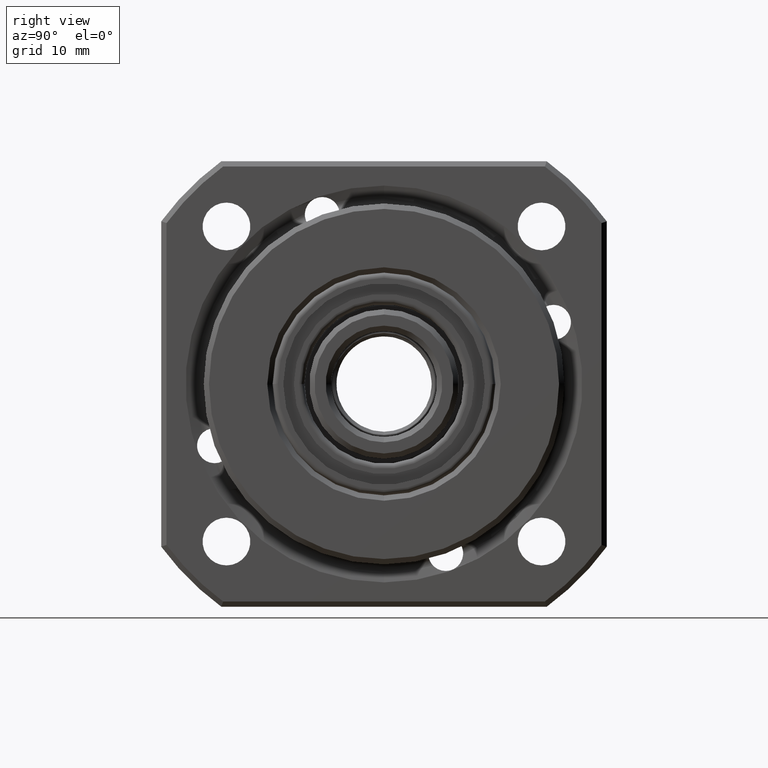
[diagram: clean part render]
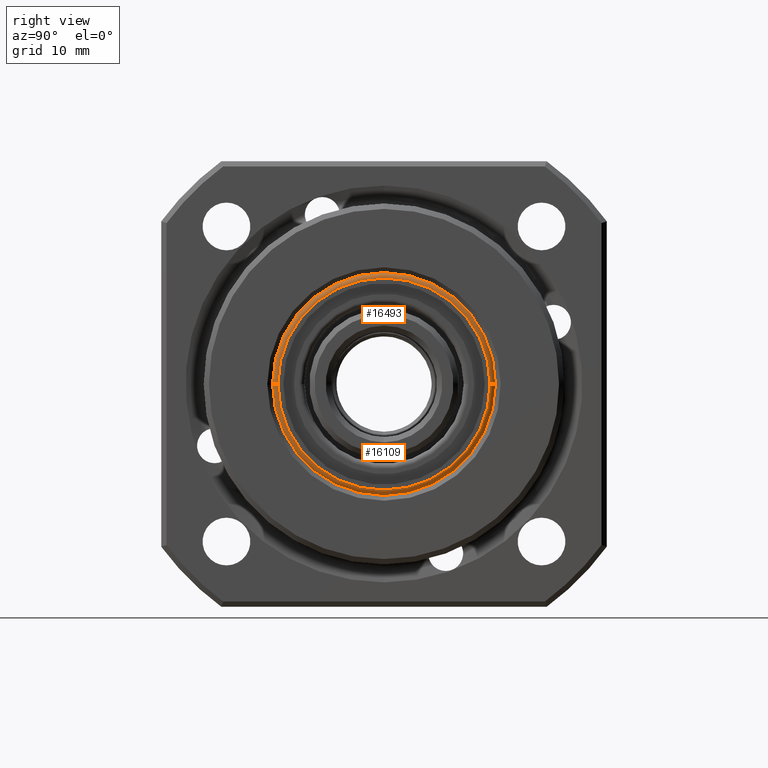
[diagram: same view with one multi-face feature highlighted, each face labeled with its STEP entity id]
A machine part, right view. The highlighted faces form ONE feature: a constant-radius fillet chain: 2 tangent blend faces with common blend radius 0.5 mm. The faces share edges in the B-rep.
Their STEP definitions:
[1] entity #16109 (Torus):
#2608 = DIRECTION ( 'NONE',  ( 0.0000000000000000000, -1.000000000000000000, -1.836970198721031700E-016 ) ) ;
#2609 = DIRECTION ( 'NONE',  ( 1.232595164407830900E-032, -1.836970198721029700E-016, 1.000000000000000000 ) ) ;
#2610 = CARTESIAN_POINT ( 'NONE',  ( 22.19999999999999600, 9.999999999999989300, 1.836970198721029600E-015 ) ) ;
#2611 = AXIS2_PLACEMENT_3D ( 'NONE', #2610, #2609, #2608 ) ;
#2612 = CIRCLE ( 'NONE', #2611, 0.5000000000000004400 ) ;
#2614 = CARTESIAN_POINT ( 'NONE',  ( 22.19999999999999600, 10.49999999999999100, 6.429820371435863100E-016 ) ) ;
#2615 = DIRECTION ( 'NONE',  ( 0.0000000000000000000, 1.000000000000000000, 1.836970198721029400E-016 ) ) ;
#2616 = DIRECTION ( 'NONE',  ( -1.000000000000000000, 0.0000000000000000000, 1.232595164407830900E-032 ) ) ;
#2617 = CARTESIAN_POINT ( 'NONE',  ( 22.19999999999999600, -1.872742500049238300E-016, 1.846764596299806700E-030 ) ) ;
#2618 = AXIS2_PLACEMENT_3D ( 'NONE', #2617, #2616, #2615 ) ;
#2619 = CIRCLE ( 'NONE', #2618, 10.49999999999999100 ) ;
#2620 = CARTESIAN_POINT ( 'NONE',  ( 22.19999999999999600, -10.49999999999999100, -1.928818708657077400E-015 ) ) ;
#2621 = DIRECTION ( 'NONE',  ( 0.0000000000000000000, 1.000000000000000000, 3.061576552543400000E-016 ) ) ;
#2622 = DIRECTION ( 'NONE',  ( -1.232595164407830900E-032, 3.061576552543406900E-016, -1.000000000000000000 ) ) ;
#2623 = CARTESIAN_POINT ( 'NONE',  ( 22.19999999999999600, -9.999999999999989300, -3.061576552543402100E-015 ) ) ;
#2624 = AXIS2_PLACEMENT_3D ( 'NONE', #2623, #2622, #2621 ) ;
#2625 = CIRCLE ( 'NONE', #2624, 0.5000000000000004400 ) ;
#2626 = CARTESIAN_POINT ( 'NONE',  ( 22.69999999999999600, 9.999999999999989300, 1.836970198721029600E-015 ) ) ;
#2627 = CARTESIAN_POINT ( 'NONE',  ( 22.69999999999999600, -9.999999999999989300, -3.138115966356986800E-015 ) ) ;
#2642 = DIRECTION ( 'NONE',  ( 0.0000000000000000000, 1.000000000000000000, 1.836970198721029700E-016 ) ) ;
#2643 = DIRECTION ( 'NONE',  ( 1.000000000000000000, -0.0000000000000000000, -1.232595164407830900E-032 ) ) ;
#2644 = CARTESIAN_POINT ( 'NONE',  ( 22.69999999999999600, -1.872742500049238300E-016, 1.840601620477767500E-030 ) ) ;
#2645 = AXIS2_PLACEMENT_3D ( 'NONE', #2644, #2643, #2642 ) ;
#2646 = DIRECTION ( 'NONE',  ( 2.264240584104833500E-048, 1.000000000000000000, 1.836970198721029700E-016 ) ) ;
#2647 = DIRECTION ( 'NONE',  ( -1.000000000000000000, 0.0000000000000000000, 1.232595164407830900E-032 ) ) ;
#2648 = AXIS2_PLACEMENT_3D ( 'NONE', #2651, #2647, #2646 ) ;
#2649 = TOROIDAL_SURFACE ( 'NONE', #2648, 9.999999999999989300, 0.5000000000000000000 ) ;
#2650 = CIRCLE ( 'NONE', #2645, 9.999999999999989300 ) ;
#2651 = CARTESIAN_POINT ( 'NONE',  ( 22.19999999999999600, -1.872742500049238300E-016, 1.846764596299806700E-030 ) ) ;
#2656 = FACE_OUTER_BOUND ( 'NONE', #16110, .T. ) ;
#16084 = VERTEX_POINT ( 'NONE', #2627 ) ;
#16085 = VERTEX_POINT ( 'NONE', #2626 ) ;
#16086 = ORIENTED_EDGE ( 'NONE', *, *, #16087, .T. ) ;
#16087 = EDGE_CURVE ( 'NONE', #16084, #16088, #2625, .T. ) ;
#16088 = VERTEX_POINT ( 'NONE', #2620 ) ;
#16089 = ORIENTED_EDGE ( 'NONE', *, *, #16090, .F. ) ;
#16090 = EDGE_CURVE ( 'NONE', #16091, #16088, #2619, .T. ) ;
#16091 = VERTEX_POINT ( 'NONE', #2614 ) ;
#16092 = ORIENTED_EDGE ( 'NONE', *, *, #16093, .F. ) ;
#16093 = EDGE_CURVE ( 'NONE', #16085, #16091, #2612, .T. ) ;
#16109 = ADVANCED_FACE ( 'NONE', ( #2656 ), #2649, .T. ) ;
#16110 = EDGE_LOOP ( 'NONE', ( #16111, #16086, #16089, #16092 ) ) ;
#16111 = ORIENTED_EDGE ( 'NONE', *, *, #16112, .F. ) ;
#16112 = EDGE_CURVE ( 'NONE', #16084, #16085, #2650, .T. ) ;
[2] entity #16493 (Torus):
#2608 = DIRECTION ( 'NONE',  ( 0.0000000000000000000, -1.000000000000000000, -1.836970198721031700E-016 ) ) ;
#2609 = DIRECTION ( 'NONE',  ( 1.232595164407830900E-032, -1.836970198721029700E-016, 1.000000000000000000 ) ) ;
#2610 = CARTESIAN_POINT ( 'NONE',  ( 22.19999999999999600, 9.999999999999989300, 1.836970198721029600E-015 ) ) ;
#2611 = AXIS2_PLACEMENT_3D ( 'NONE', #2610, #2609, #2608 ) ;
#2612 = CIRCLE ( 'NONE', #2611, 0.5000000000000004400 ) ;
#2614 = CARTESIAN_POINT ( 'NONE',  ( 22.19999999999999600, 10.49999999999999100, 6.429820371435863100E-016 ) ) ;
#2620 = CARTESIAN_POINT ( 'NONE',  ( 22.19999999999999600, -10.49999999999999100, -1.928818708657077400E-015 ) ) ;
#2621 = DIRECTION ( 'NONE',  ( 0.0000000000000000000, 1.000000000000000000, 3.061576552543400000E-016 ) ) ;
#2622 = DIRECTION ( 'NONE',  ( -1.232595164407830900E-032, 3.061576552543406900E-016, -1.000000000000000000 ) ) ;
#2623 = CARTESIAN_POINT ( 'NONE',  ( 22.19999999999999600, -9.999999999999989300, -3.061576552543402100E-015 ) ) ;
#2624 = AXIS2_PLACEMENT_3D ( 'NONE', #2623, #2622, #2621 ) ;
#2625 = CIRCLE ( 'NONE', #2624, 0.5000000000000004400 ) ;
#2626 = CARTESIAN_POINT ( 'NONE',  ( 22.69999999999999600, 9.999999999999989300, 1.836970198721029600E-015 ) ) ;
#2627 = CARTESIAN_POINT ( 'NONE',  ( 22.69999999999999600, -9.999999999999989300, -3.138115966356986800E-015 ) ) ;
#3016 = DIRECTION ( 'NONE',  ( 0.0000000000000000000, 1.000000000000000000, 1.836970198721029700E-016 ) ) ;
#3017 = DIRECTION ( 'NONE',  ( 1.000000000000000000, -0.0000000000000000000, -1.232595164407830900E-032 ) ) ;
#3018 = AXIS2_PLACEMENT_3D ( 'NONE', #3023, #3017, #3016 ) ;
#3019 = CIRCLE ( 'NONE', #3018, 9.999999999999989300 ) ;
#3023 = CARTESIAN_POINT ( 'NONE',  ( 22.69999999999999600, -1.872742500049238300E-016, 1.840601620477767500E-030 ) ) ;
#3229 = DIRECTION ( 'NONE',  ( 0.0000000000000000000, 1.000000000000000000, 1.836970198721029400E-016 ) ) ;
#3230 = DIRECTION ( 'NONE',  ( -1.000000000000000000, 0.0000000000000000000, 1.232595164407830900E-032 ) ) ;
#3231 = CARTESIAN_POINT ( 'NONE',  ( 22.19999999999999600, -1.872742500049238300E-016, 1.846764596299806700E-030 ) ) ;
#3232 = AXIS2_PLACEMENT_3D ( 'NONE', #3231, #3230, #3229 ) ;
#3233 = CIRCLE ( 'NONE', #3232, 10.49999999999999100 ) ;
#3237 = CARTESIAN_POINT ( 'NONE',  ( 22.19999999999999600, -1.872742500049238300E-016, 1.846764596299806700E-030 ) ) ;
#3243 = FACE_OUTER_BOUND ( 'NONE', #16459, .T. ) ;
#3293 = DIRECTION ( 'NONE',  ( 2.264240584104833500E-048, 1.000000000000000000, 1.836970198721029700E-016 ) ) ;
#3294 = DIRECTION ( 'NONE',  ( -1.000000000000000000, 0.0000000000000000000, 1.232595164407830900E-032 ) ) ;
#3295 = AXIS2_PLACEMENT_3D ( 'NONE', #3237, #3294, #3293 ) ;
#3296 = TOROIDAL_SURFACE ( 'NONE', #3295, 9.999999999999989300, 0.5000000000000000000 ) ;
#16084 = VERTEX_POINT ( 'NONE', #2627 ) ;
#16085 = VERTEX_POINT ( 'NONE', #2626 ) ;
#16087 = EDGE_CURVE ( 'NONE', #16084, #16088, #2625, .T. ) ;
#16088 = VERTEX_POINT ( 'NONE', #2620 ) ;
#16091 = VERTEX_POINT ( 'NONE', #2614 ) ;
#16093 = EDGE_CURVE ( 'NONE', #16085, #16091, #2612, .T. ) ;
#16334 = EDGE_CURVE ( 'NONE', #16085, #16084, #3019, .T. ) ;
#16459 = EDGE_LOOP ( 'NONE', ( #16494, #16495, #16497, #16499 ) ) ;
#16467 = EDGE_CURVE ( 'NONE', #16088, #16091, #3233, .T. ) ;
#16493 = ADVANCED_FACE ( 'NONE', ( #3243 ), #3296, .T. ) ;
#16494 = ORIENTED_EDGE ( 'NONE', *, *, #16087, .F. ) ;
#16495 = ORIENTED_EDGE ( 'NONE', *, *, #16334, .F. ) ;
#16497 = ORIENTED_EDGE ( 'NONE', *, *, #16093, .T. ) ;
#16499 = ORIENTED_EDGE ( 'NONE', *, *, #16467, .F. ) ;